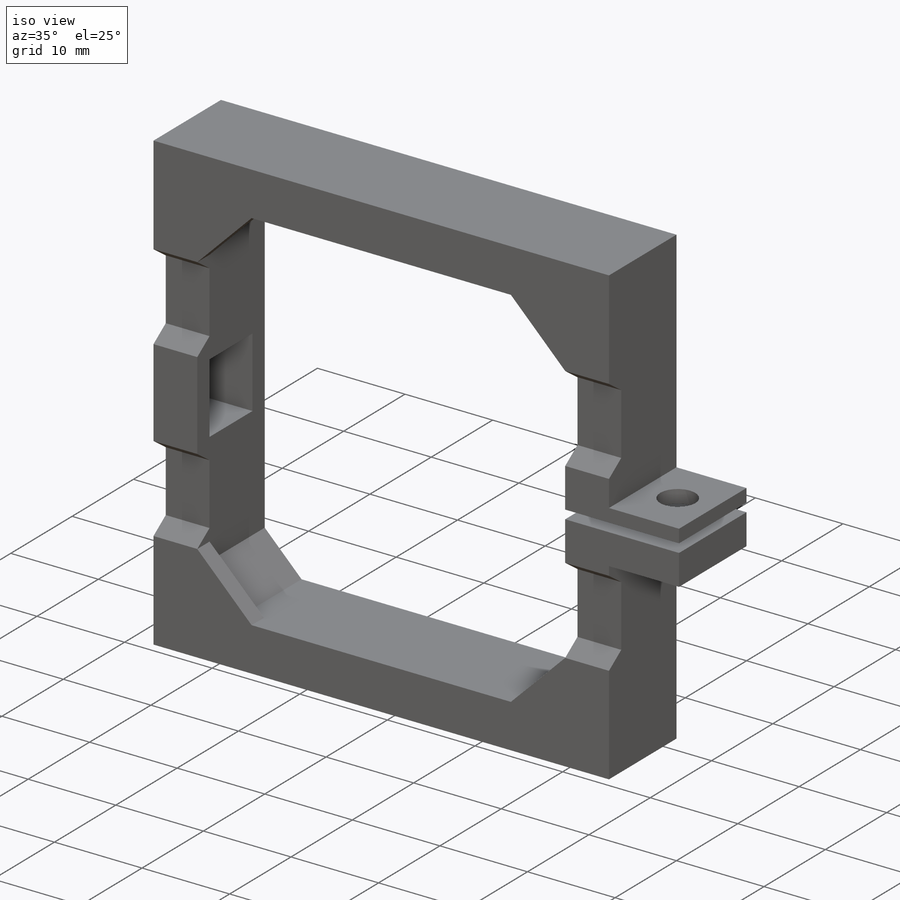
[diagram: iso view]
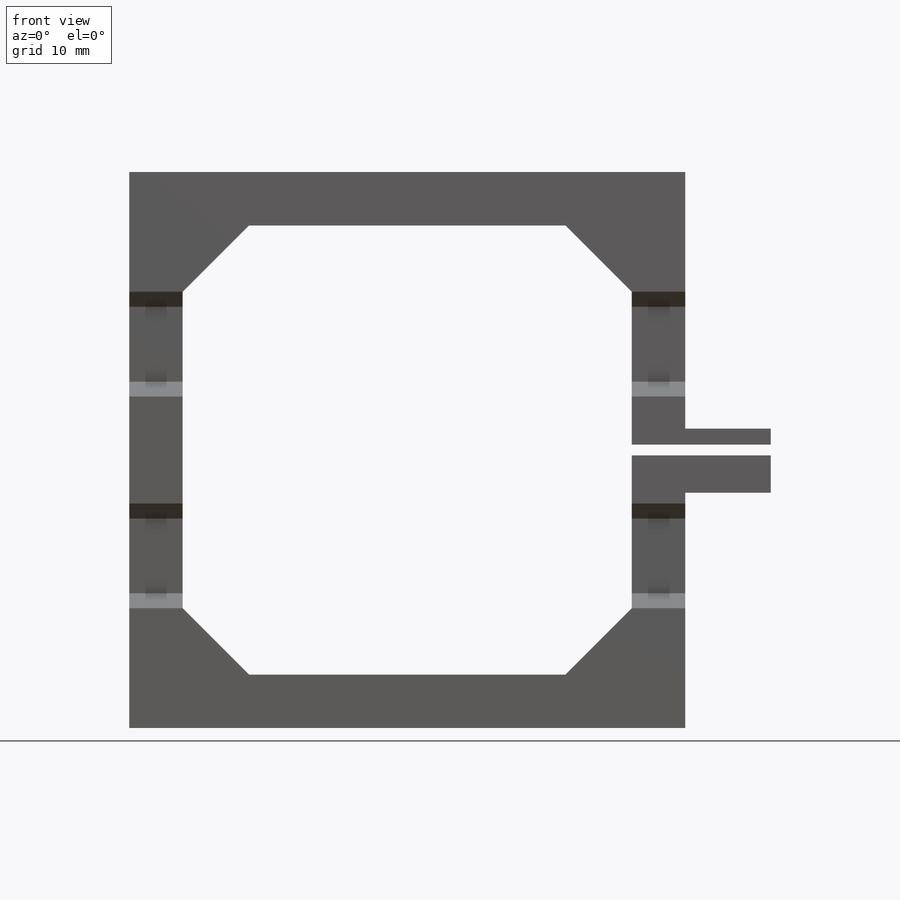
[diagram: front view]
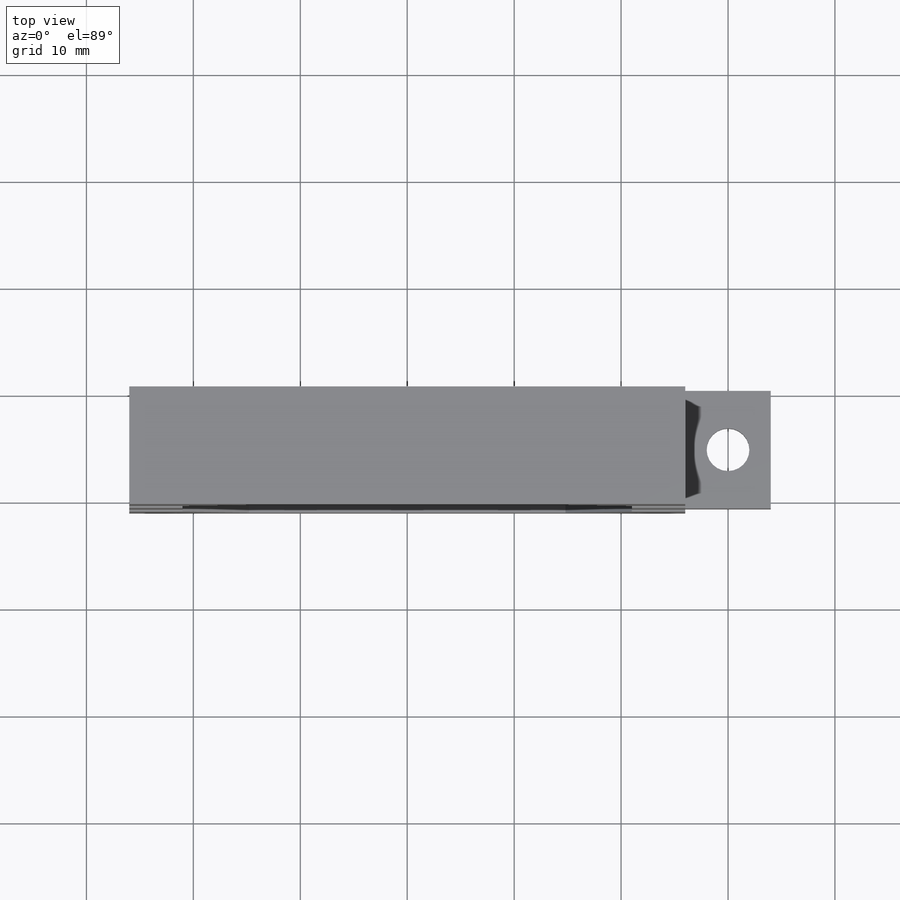
[diagram: top view]
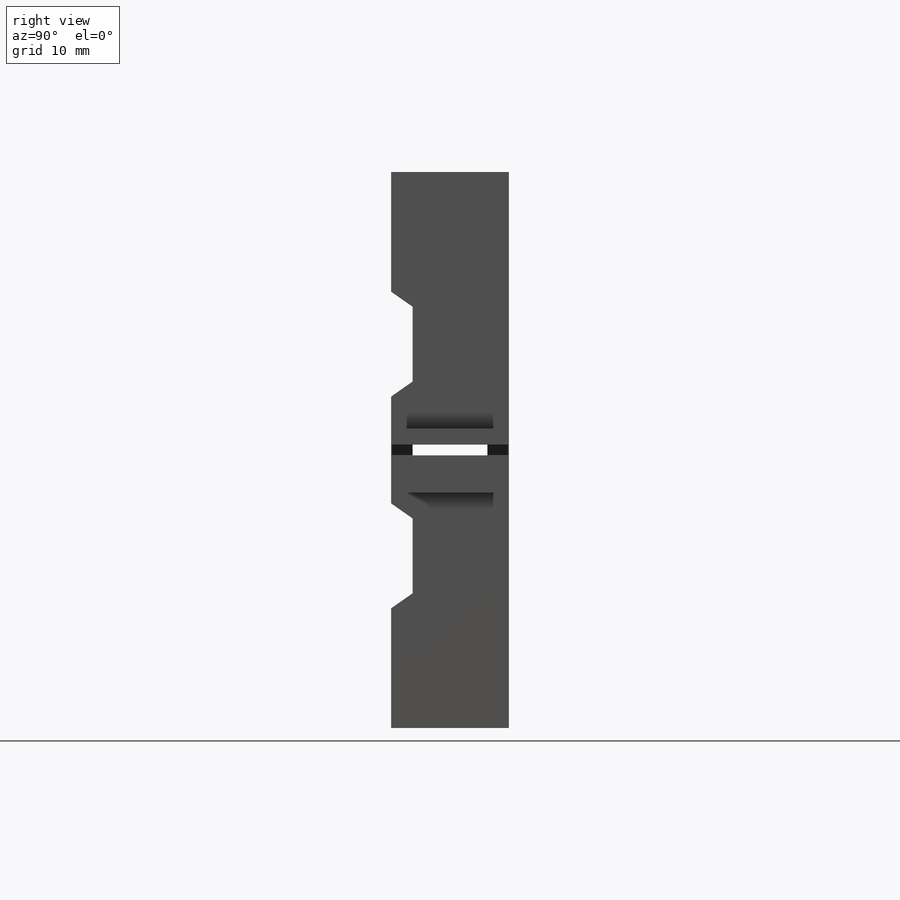
[diagram: right view]
SOLIDWORKS PART (.sldprt)
format: sldprt  version: not decoded by parser v0  size: 566,272 bytes
history: native  units: mm
features: sketch x9, cut_extrude x5, extrude x4, plane x3, mirror x3, material x1 (+10 scaffold rows collapsed)
feature tree (35):
  scaffold x10  (default folders/planes/origin — collapsed)
  material  "Matériau <non spécifié>"
  plane  "Plan de face"
  plane  "Plan de dessus"
  plane  "Plan de droite"
  sketch  "Esquisse1"  dims[D1=42.0mm D2=5.0mm D3=5.0mm]
  extrude  "Boss.-Extru.1"  Depth=11mm
  sketch  "Esquisse2"  dims[D1=14.8mm D2=5.0mm D3=9.0mm D4=7.0mm]
  cut_extrude  "Enlèv. mat.-Extru.1"  [1 undecoded]
  mirror  "Symétrie1"
  sketch  "Esquisse3"  dims[c1.D1=~8.396532mm c2.D1=45.0deg c2.D2=0.0mm]
  extrude  "Boss.-Extru.2"  Depth=2mm
  sketch  "Esquisse6"  dims[c1.D1=4.2mm c1.D2=4.2mm c2.D2=45.0deg c2.D1=4.2mm c3.D2=4.2mm c4.D2=45.0deg]
  extrude  "Boss.-Extru.3"  Depth=9mm
  mirror  "Symétrie2"
  mirror  "Symétrie3"
  sketch  "Esquisse4"  dims[D1=8.0mm D2=7.0mm D3=9.0mm D4=8.0mm]
  cut_extrude  "Enlèv. mat.-Extru.2"  [1 undecoded]
  sketch  "Esquisse7"  dims[D1=6.0mm D2=4.0mm]
  extrude  "Boss.-Extru.4"  Depth=8mm
  sketch  "Esquisse8"  dims[D1=1.0mm]
  cut_extrude  "Enlèv. mat.-Extru.3"  [1 undecoded]
  sketch  "Esquisse9"  dims[D1=6.0mm]
  cut_extrude  "Enlèv. mat.-Extru.4"  Depth=2.5mm
  sketch  "Esquisse10"  dims[D1=4.0mm]
  cut_extrude  "Enlèv. mat.-Extru.5"  [1 undecoded]
decode coverage: 14 of 21 modeling features carry decoded parameters
note: ~ marks probable driven/reference dimensions
note: 4 parameter values undecoded
summary: no parameter record found for 4 features
note: suppression state not decoded; provenance and decode notes live in map.json
